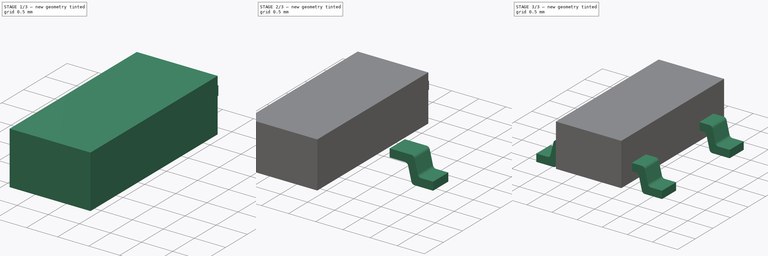
[diagram: build sequence overview — one tinted view per stage of 3, left to right]
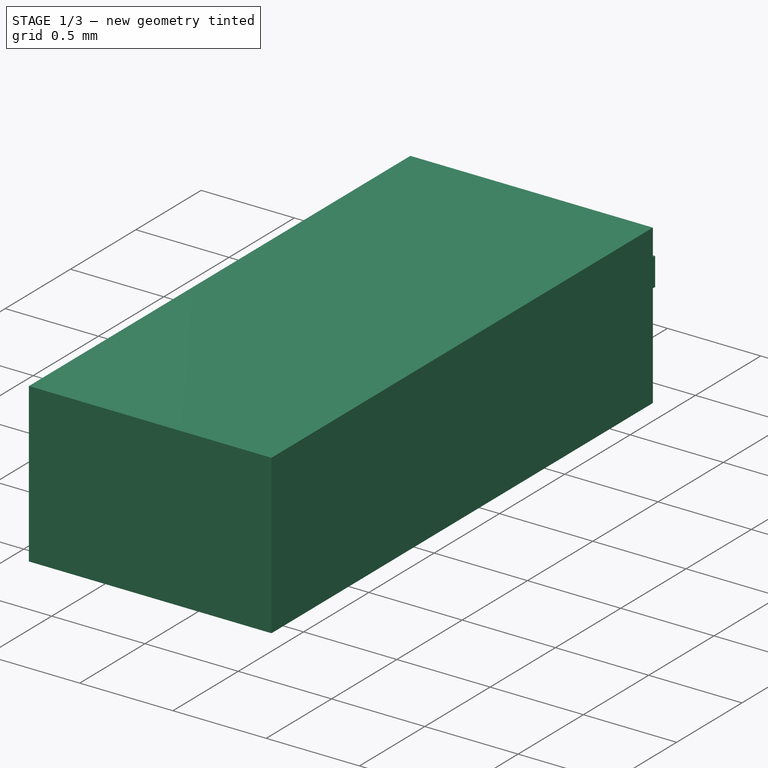
[diagram: stage 1 of 3 — iso view after this stage's code; geometry added in this stage tinted green]
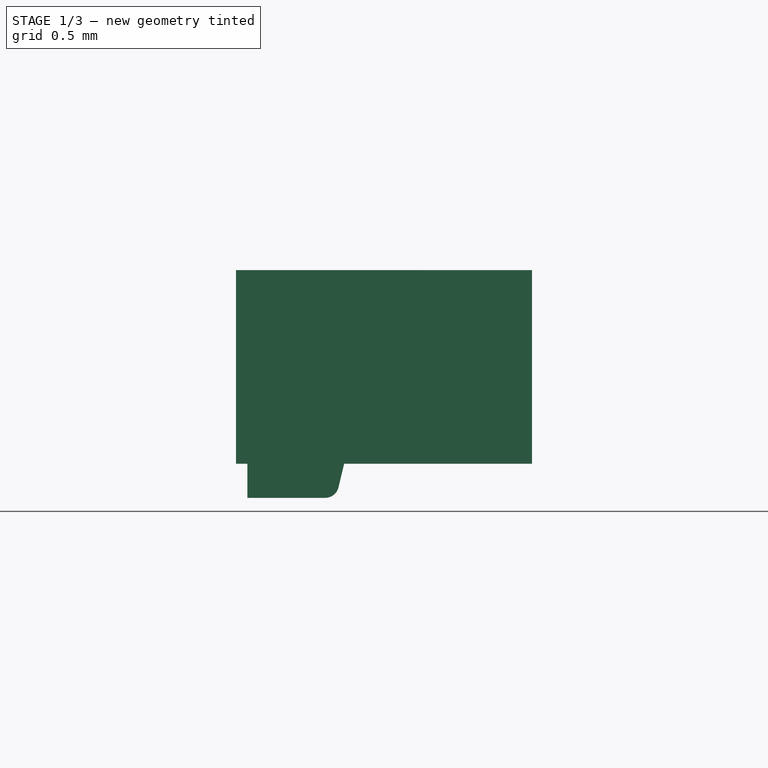
[diagram: stage 1 of 3 — front view after this stage's code; geometry added in this stage tinted green]
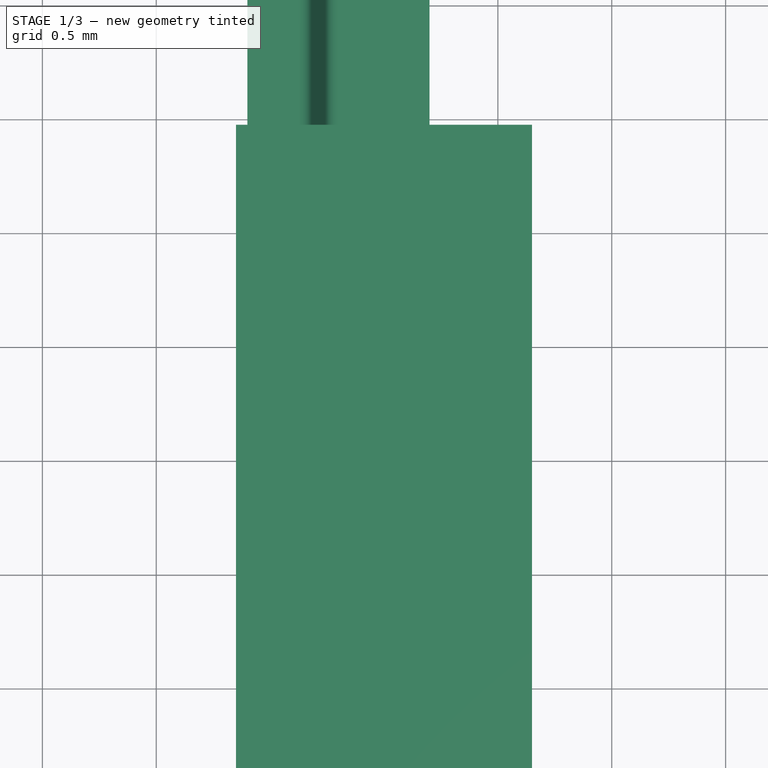
[diagram: stage 1 of 3 — top view after this stage's code; geometry added in this stage tinted green]
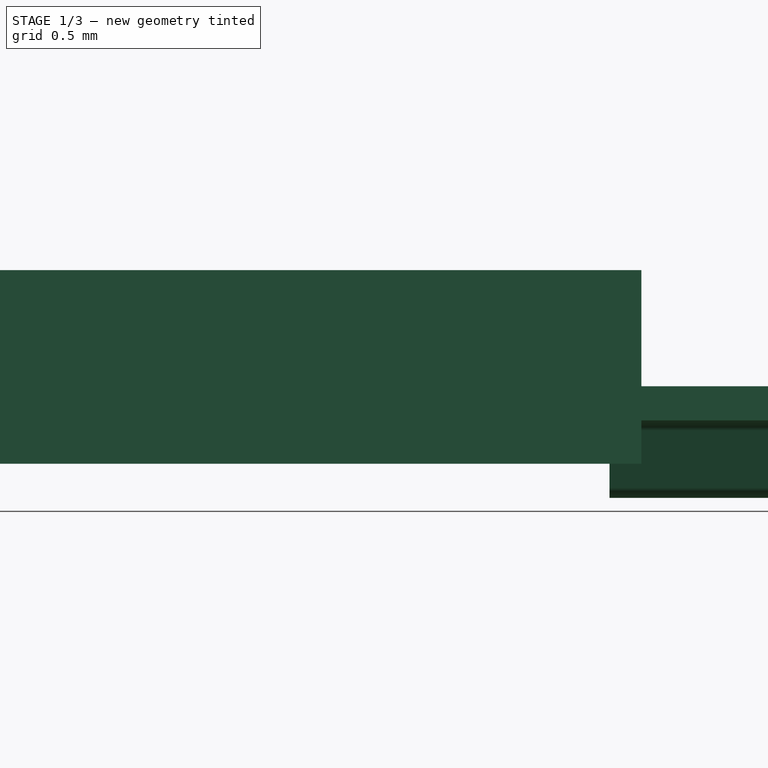
[diagram: stage 1 of 3 — right view after this stage's code; geometry added in this stage tinted green]
FCSTD DOCUMENT  (FreeCAD 0.19R19125 (Git))
Label: DZD
License: All rights reserved
LicenseURL: http://en.wikipedia.org/wiki/All_rights_reserved
objects: Sketcher::SketchObject×3, PartDesign::Pad×2, PartDesign::Body×2, Part::Mirroring×1, Part::FeaturePython×1, Part::Compound×1, Part::Extrusion×1
note: 13 computed .brp shape members not serialized (recipe doc carries the construction recipe); baked Part::Feature solids carry a one-line shape summary decoded from their .brp

FEATURE [Sketcher::SketchObject] Sketch002  label="Leg Sketch001"
  MapMode = 5
  Placement = pos=(0,1.72,0) rot=(1,0,0;1.5708rad)
  sketch-geometry (15):
    g0: LineSegment StartX=-0.6 StartY=0 StartZ=0 EndX=-0.6 EndY=0.15 EndZ=0
    g1: LineSegment StartX=-0.6 StartY=0.15 StartZ=0 EndX=-0.376468 EndY=0.15 EndZ=0
    g2: LineSegment StartX=-0.318139 StartY=0.19594 StartZ=0 EndX=-0.258329 EndY=0.44406 EndZ=0
    g3: LineSegment StartX=-0.2 StartY=0.49 StartZ=0 EndX=0 EndY=0.49 EndZ=0
    g4: LineSegment StartX=-1.17111e-06 StartY=0.34 StartZ=0 EndX=-0.0818612 EndY=0.34 EndZ=0
    g5: LineSegment StartX=-0.14019 StartY=0.29406 StartZ=0 EndX=-0.2 EndY=0.0459397 EndZ=0
    g6: LineSegment StartX=-0.258329 StartY=0 StartZ=0 EndX=-0.6 EndY=0 EndZ=0
    g7: ArcOfCircle CenterX=-0.2 CenterY=0.43 CenterZ=0 NormalX=0 NormalY=0 NormalZ=1 AngleXU=0 Radius=0.06 StartAngle=1.5708 EndAngle=2.90505
    g8: ArcOfCircle CenterX=-0.0818612 CenterY=0.28 CenterZ=0 NormalX=0 NormalY=0 NormalZ=1 AngleXU=0 Radius=0.06 StartAngle=1.5708 EndAngle=2.90505
    g9: ArcOfCircle CenterX=-0.376468 CenterY=0.21 CenterZ=0 NormalX=0 NormalY=0 NormalZ=1 AngleXU=0 Radius=0.06 StartAngle=4.71239 EndAngle=6.04665
    g10: ArcOfCircle CenterX=-0.258329 CenterY=0.06 CenterZ=0 NormalX=0 NormalY=0 NormalZ=1 AngleXU=0 Radius=0.06 StartAngle=4.71239 EndAngle=6.04665
    g11: LineSegment [constr] StartX=-0.14019 StartY=0.29406 StartZ=0 EndX=-0.286014 EndY=0.329211 EndZ=0
    g12: LineSegment StartX=0 StartY=0.49 StartZ=0 EndX=0.199999 EndY=0.49 EndZ=0
    g13: LineSegment StartX=0.199999 StartY=0.49 StartZ=0 EndX=0.199999 EndY=0.34 EndZ=0
    g14: LineSegment StartX=0.199999 StartY=0.34 StartZ=0 EndX=-1.17111e-06 EndY=0.34 EndZ=0
  constraints (41):
    c: Coincident(g0,g1)
    c: Coincident(g6,g0)
    c: Horizontal(g6)
    c: Horizontal(g1)
    c: Horizontal(g4)
    c: Horizontal(g3)
    c: Vertical(g0)
    c: PointOnObject(g0,g-1)
    c: PointOnObject(g3,g-2)
    c: DistanceY(g0,g0) = 0.15
    c: DistanceY(g4,g3) = 0.15
    c: Distance(g-1,g0) = 0.6
    c: Parallel(g2,g5)
    c: Tangent(g2,g7) = 1.5708
    c: Tangent(g3,g7) = 1.5708
    c: Tangent(g4,g8) = -1.5708
    c: Tangent(g5,g8) = -1.5708
    c: Tangent(g1,g9) = -1.5708
    c: Tangent(g2,g9) = -1.5708
    c: Tangent(g5,g10) = 1.5708
    c: Tangent(g6,g10) = 1.5708
    c: Radius(g9) = 0.06
    c: Radius(g10) = 0.06
    c: Radius(g8) = 0.06
    c: Radius(g7) = 0.06
    c: DistanceX(g0,g5) = 0.4
    c: Perpendicular(g11,g2)
    c: PointOnObject(g11,g2)
    c: Coincident(g11,g5)
    c: Distance(g11) = 0.15
    c: Distance(g3) = 0.2
    c: DistanceY(g-1,g3) = 0.49
    c: Horizontal(g14)
    c: Horizontal(g12)
    c: Vertical(g13)
    c: Coincident(g12,g3)
    c: Coincident(g12,g13)
    c: Coincident(g13,g14)
    c: Coincident(g14,g4)
    c: DistanceX(g4,g4) = 0.08186
    c: DistanceX(g14,g14) = 0.2
FEATURE [PartDesign::Pad] Pad001  label="Leg Pad001"
  Length = 0.8
  Length2 = 100
  Midplane = true
  Placement = pos=(0,1.72,0) rot=(1,0,0;1.5708rad)
  Profile = -> Sketch002
  Type = 0
FEATURE [Sketcher::SketchObject] Sketch003
  AttachmentOffset = pos=(0,0,0.15) rot=(0,0,1;0rad)
  MapMode = 5
  Placement = pos=(0,0,0.15) rot=(0,0,1;0rad)
  Support = -> [XY_Plane001]
  sketch-geometry (4):
    g0: LineSegment StartX=-0.65 StartY=-1.46 StartZ=0 EndX=0.65 EndY=-1.46 EndZ=0
    g1: LineSegment StartX=0.65 StartY=-1.46 StartZ=0 EndX=0.65 EndY=1.46 EndZ=0
    g2: LineSegment StartX=0.65 StartY=1.46 StartZ=0 EndX=-0.65 EndY=1.46 EndZ=0
    g3: LineSegment StartX=-0.65 StartY=1.46 StartZ=0 EndX=-0.65 EndY=-1.46 EndZ=0
  constraints (12):
    c: Coincident(g0,g1)
    c: Coincident(g1,g2)
    c: Coincident(g2,g3)
    c: Coincident(g3,g0)
    c: Horizontal(g0)
    c: Horizontal(g2)
    c: Vertical(g1)
    c: Vertical(g3)
    c: Distance(g0,g0) = 1.3
    c: Distance(g3) = 2.92
    c: DistanceY(g-1,g2) = 1.46
    c: DistanceX(g-1,g0) = 0.65
FEATURE [PartDesign::Body] Body001
  Group = -> [Sketch003]
  Origin = -> Origin001
FEATURE [Part::Extrusion] Extrude
  Base = -> Sketch003
  Dir = (0,0,1)
  DirMode = 0
  FaceMakerClass = Part::FaceMakerBullseye
  LengthFwd = 0.85
  LengthRev = 0
  Solid = true
  Symmetric = false
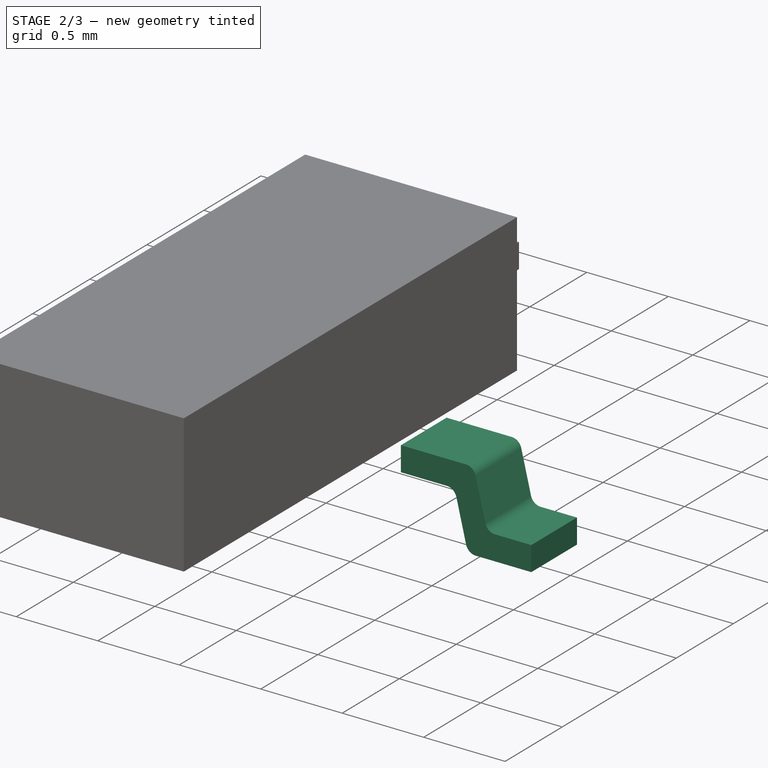
[diagram: stage 2 of 3 — iso view after this stage's code; geometry added in this stage tinted green]
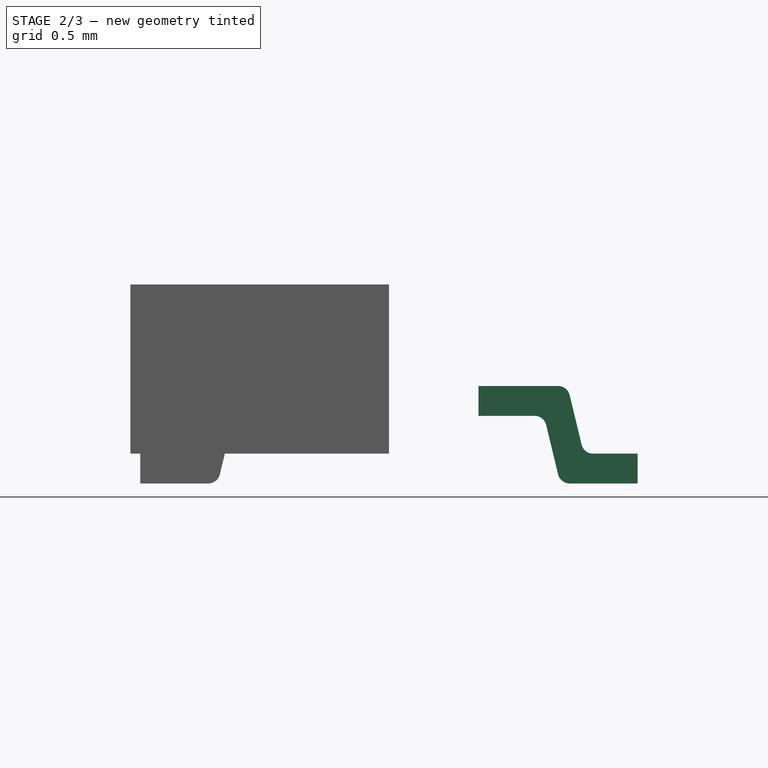
[diagram: stage 2 of 3 — front view after this stage's code; geometry added in this stage tinted green]
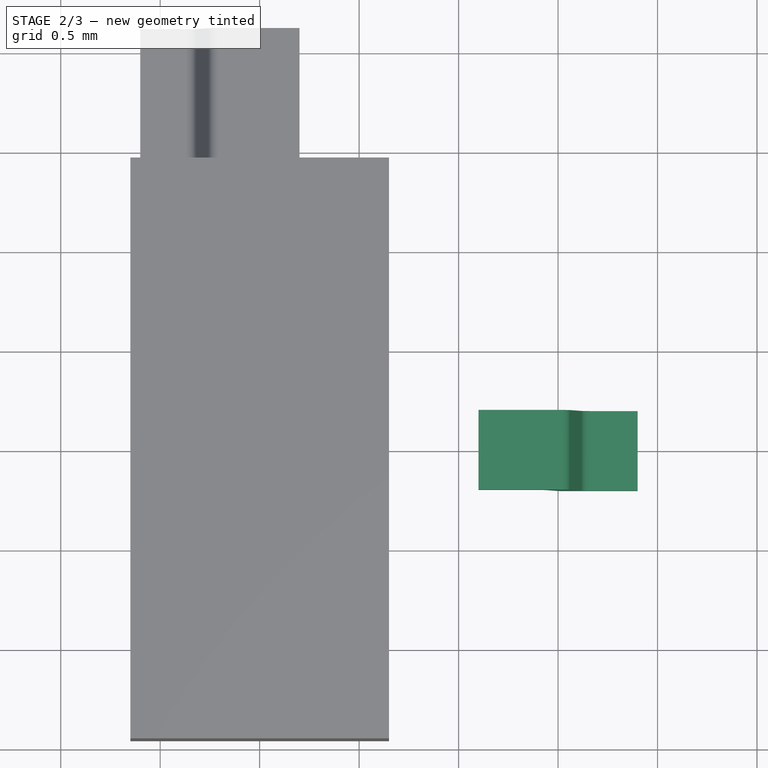
[diagram: stage 2 of 3 — top view after this stage's code; geometry added in this stage tinted green]
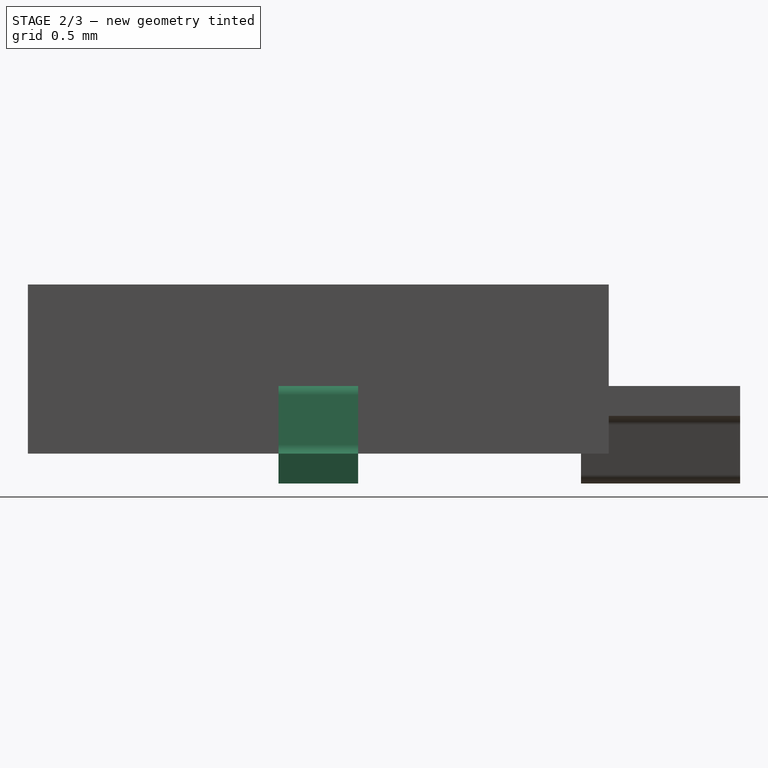
[diagram: stage 2 of 3 — right view after this stage's code; geometry added in this stage tinted green]
FEATURE [Sketcher::SketchObject] Sketch  label="Leg Sketch"
  MapMode = 5
  Placement = pos=(0,0,0) rot=(1,0,0;1.5708rad)
  Support = -> [XZ_Plane]
  sketch-geometry (15):
    g0: LineSegment StartX=-0.6 StartY=0 StartZ=0 EndX=-0.6 EndY=0.15 EndZ=0
    g1: LineSegment StartX=-0.6 StartY=0.15 StartZ=0 EndX=-0.376468 EndY=0.15 EndZ=0
    g2: LineSegment StartX=-0.318139 StartY=0.19594 StartZ=0 EndX=-0.258329 EndY=0.44406 EndZ=0
    g3: LineSegment StartX=-0.2 StartY=0.49 StartZ=0 EndX=0 EndY=0.49 EndZ=0
    g4: LineSegment StartX=9.88289e-05 StartY=0.34 StartZ=0 EndX=-0.0818612 EndY=0.34 EndZ=0
    g5: LineSegment StartX=-0.14019 StartY=0.29406 StartZ=0 EndX=-0.2 EndY=0.0459397 EndZ=0
    g6: LineSegment StartX=-0.258329 StartY=0 StartZ=0 EndX=-0.6 EndY=0 EndZ=0
    g7: ArcOfCircle CenterX=-0.2 CenterY=0.43 CenterZ=0 NormalX=0 NormalY=0 NormalZ=1 AngleXU=0 Radius=0.06 StartAngle=1.5708 EndAngle=2.90505
    g8: ArcOfCircle CenterX=-0.0818612 CenterY=0.28 CenterZ=0 NormalX=0 NormalY=0 NormalZ=1 AngleXU=0 Radius=0.06 StartAngle=1.5708 EndAngle=2.90505
    g9: ArcOfCircle CenterX=-0.376468 CenterY=0.21 CenterZ=0 NormalX=0 NormalY=0 NormalZ=1 AngleXU=0 Radius=0.06 StartAngle=4.71239 EndAngle=6.04665
    g10: ArcOfCircle CenterX=-0.258329 CenterY=0.06 CenterZ=0 NormalX=0 NormalY=0 NormalZ=1 AngleXU=0 Radius=0.06 StartAngle=4.71239 EndAngle=6.04665
    g11: LineSegment [constr] StartX=-0.14019 StartY=0.29406 StartZ=0 EndX=-0.286014 EndY=0.329211 EndZ=0
    g12: LineSegment StartX=0 StartY=0.49 StartZ=0 EndX=0.2 EndY=0.49 EndZ=0
    g13: LineSegment StartX=0.2 StartY=0.49 StartZ=0 EndX=0.2 EndY=0.34 EndZ=0
    g14: LineSegment StartX=0.2 StartY=0.34 StartZ=0 EndX=9.88289e-05 EndY=0.34 EndZ=0
  constraints (41):
    c: Coincident(g0,g1)
    c: Coincident(g6,g0)
    c: Horizontal(g6)
    c: Horizontal(g1)
    c: Horizontal(g4)
    c: Horizontal(g3)
    c: Vertical(g0)
    c: PointOnObject(g0,g-1)
    c: PointOnObject(g3,g-2)
    c: DistanceY(g0,g0) = 0.15
    c: DistanceY(g4,g3) = 0.15
    c: Distance(g-1,g0) = 0.6
    c: Parallel(g2,g5)
    c: Tangent(g2,g7) = 1.5708
    c: Tangent(g3,g7) = 1.5708
    c: Tangent(g4,g8) = -1.5708
    c: Tangent(g5,g8) = -1.5708
    c: Tangent(g1,g9) = -1.5708
    c: Tangent(g2,g9) = -1.5708
    c: Tangent(g5,g10) = 1.5708
    c: Tangent(g6,g10) = 1.5708
    c: Radius(g9) = 0.06
    c: Radius(g10) = 0.06
    c: Radius(g8) = 0.06
    c: Radius(g7) = 0.06
    c: DistanceX(g0,g5) = 0.4
    c: Perpendicular(g11,g2)
    c: PointOnObject(g11,g2)
    c: Coincident(g11,g5)
    c: Distance(g11) = 0.15
    c: Distance(g3) = 0.2
    c: DistanceY(g-1,g3) = 0.49
    c: Horizontal(g12)
    c: Horizontal(g14)
    c: Coincident(g14,g4)
    c: Coincident(g13,g14)
    c: Vertical(g13)
    c: DistanceX(g-1,g13) = 0.2
    c: Coincident(g12,g13)
    c: Coincident(g3,g12)
    c: DistanceX(g4,g4) = 0.08196
FEATURE [PartDesign::Pad] Pad  label="Leg Pad"
  Length = 0.4
  Length2 = 100
  Midplane = true
  Placement = pos=(0,0,0) rot=(1,0,0;1.5708rad)
  Profile = -> Sketch
  Type = 0
FEATURE [PartDesign::Body] Body
  Group = -> [Sketch,Pad]
  Origin = -> Origin
  Tip = -> Pad
FEATURE [Part::Mirroring] Part__Mirroring  label="Leg Pad (Mirror #1)"
  Base = (0.65,0,0)
  Normal = (1,0,0)
  Source = -> Pad
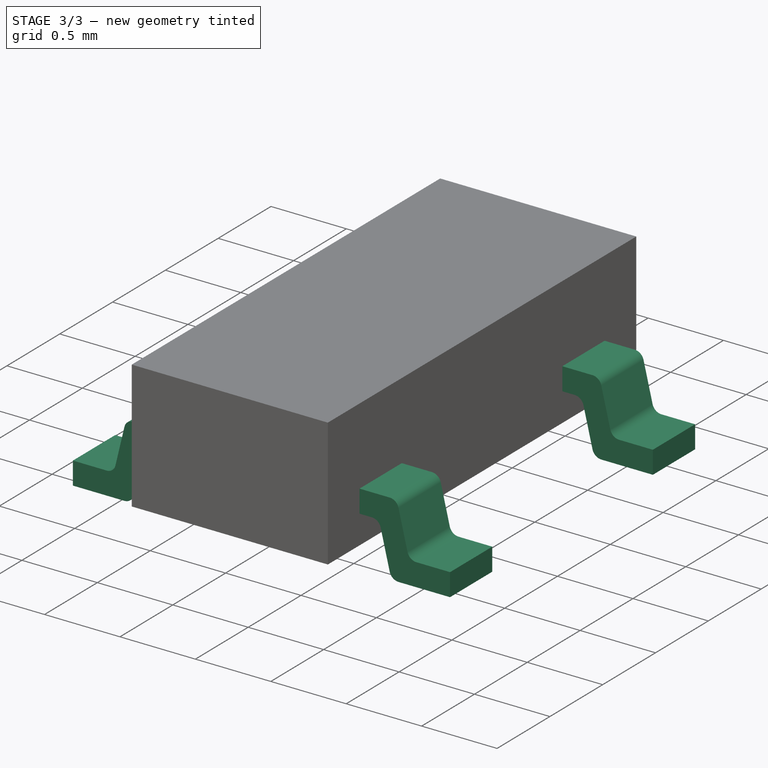
[diagram: stage 3 of 3 — iso view after this stage's code; geometry added in this stage tinted green]
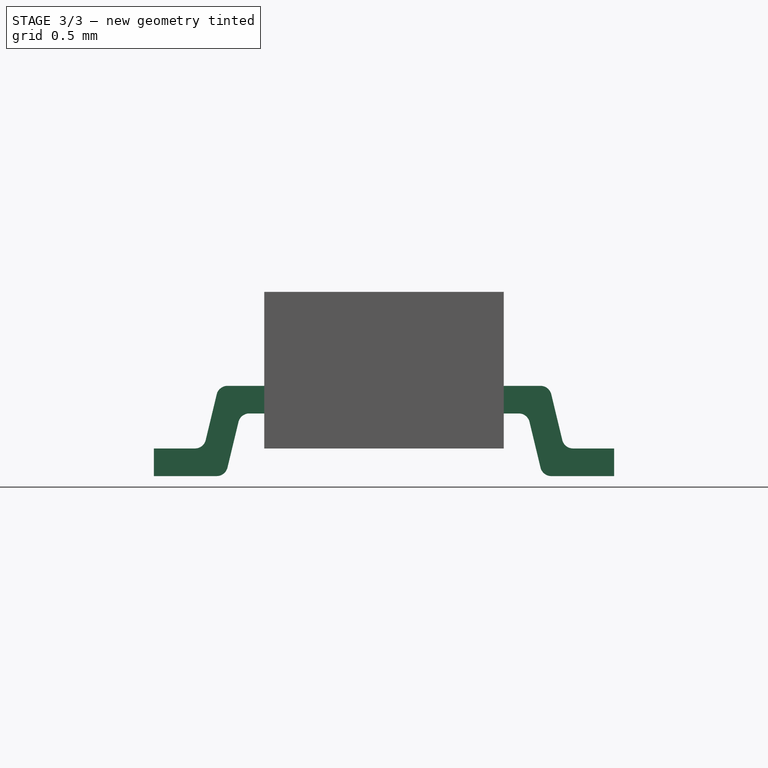
[diagram: stage 3 of 3 — front view after this stage's code; geometry added in this stage tinted green]
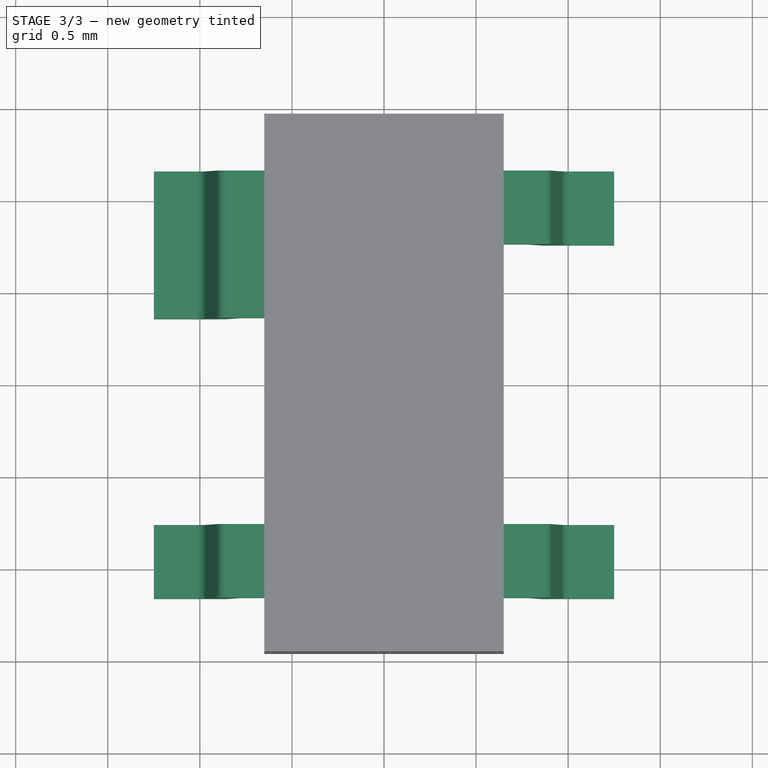
[diagram: stage 3 of 3 — top view after this stage's code; geometry added in this stage tinted green]
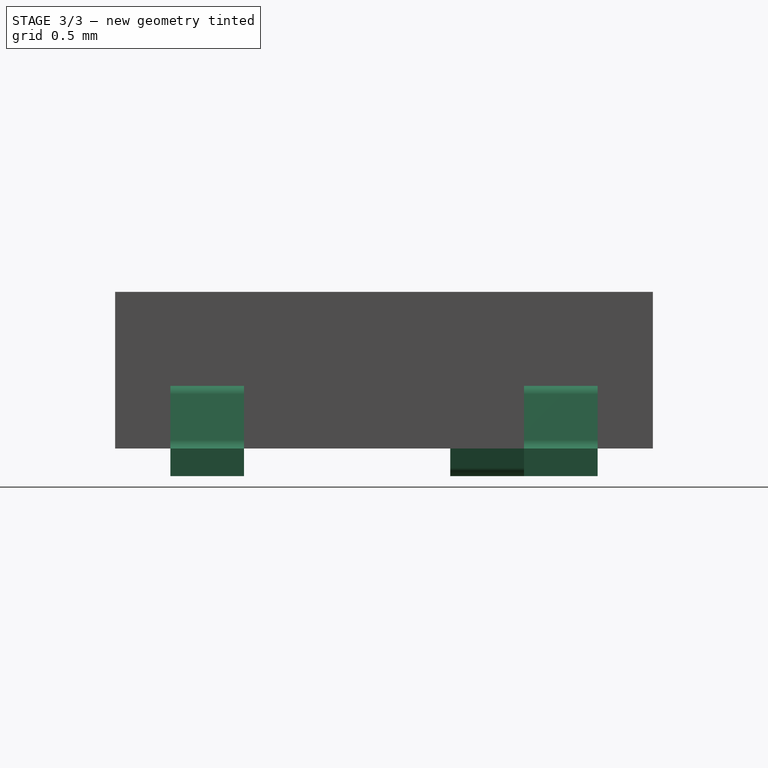
[diagram: stage 3 of 3 — right view after this stage's code; geometry added in this stage tinted green]
FEATURE [Part::FeaturePython] Array  # Draft array (typed FeaturePython)
  Angle = 360
  ArrayType = 0
  Axis = (0,0,1)
  Base = -> Part__Mirroring
  Center = (0,0,0)
  Fuse = false
  IntervalAxis = (0,0,0)
  IntervalX = (1,0,0)
  IntervalY = (0,1.92,0)
  IntervalZ = (0,0,1)
  NumberCircles = 1
  NumberPolar = 1
  NumberX = 1
  NumberY = 2
  NumberZ = 1
  RadialDistance = 1
  Symmetry = 1
  TangentialDistance = 1
FEATURE [Part::Compound] Compound
  Links = -> [Body,Array,Pad001]
  Placement = pos=(-0.65,-0.96,0) rot=(0,0,1;0rad)
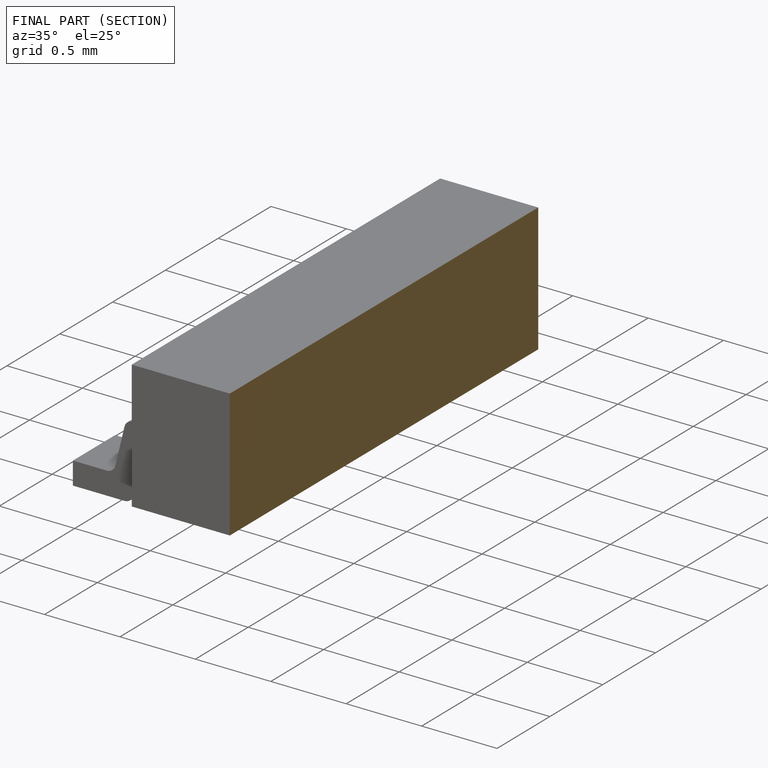
[diagram: finished part — half-section view (interior)]
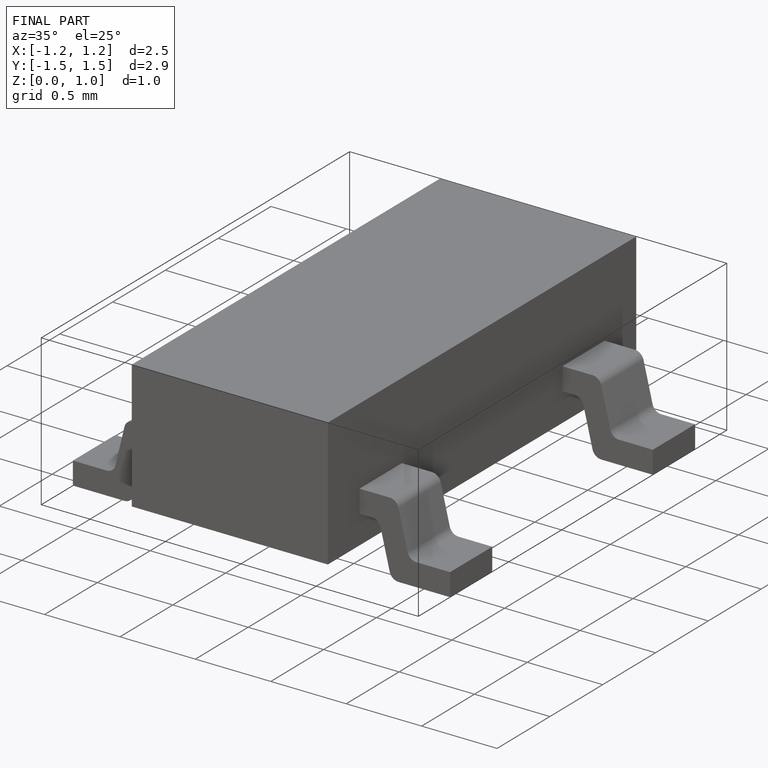
[diagram: finished part — iso view with bounding-box wireframe]
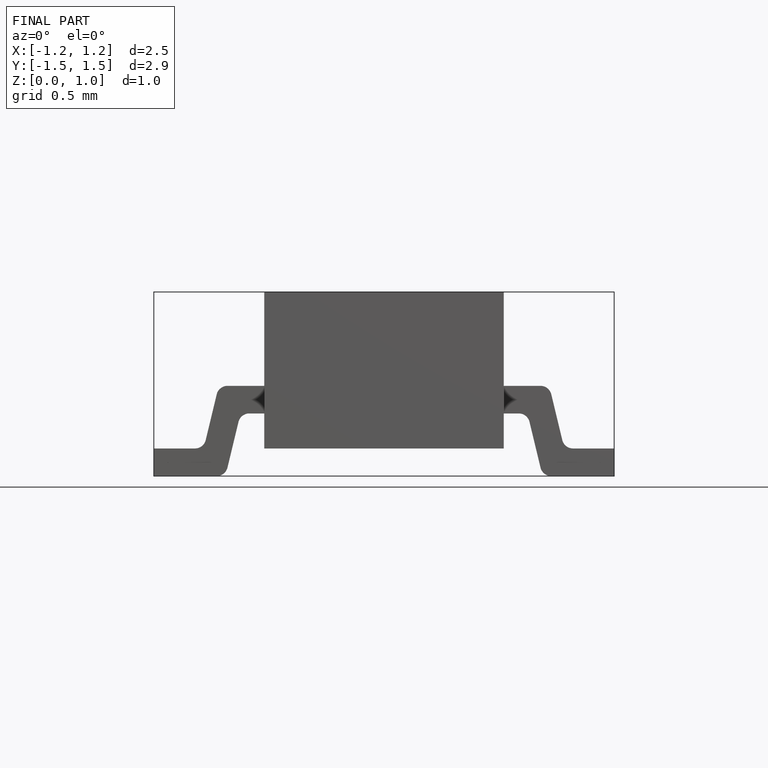
[diagram: finished part — front view with bounding-box wireframe]
